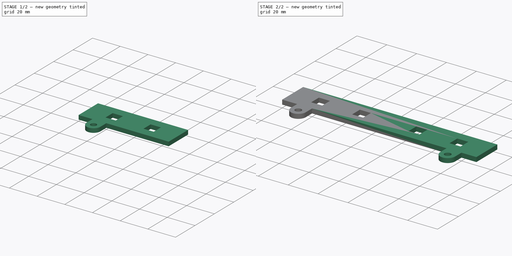
[diagram: build sequence overview — one tinted view per stage of 2, left to right]
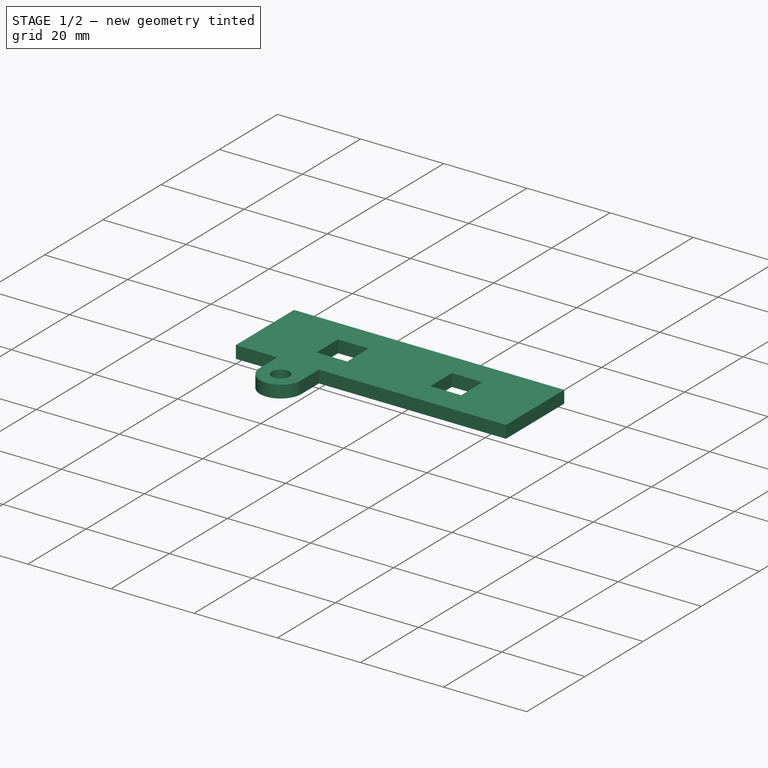
[diagram: stage 1 of 2 — iso view after this stage's code; geometry added in this stage tinted green]
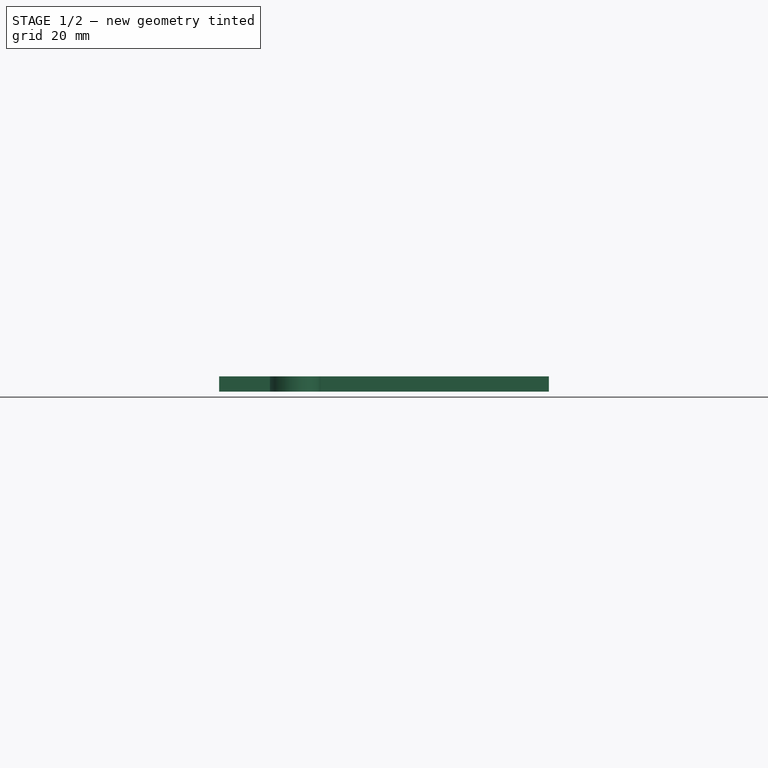
[diagram: stage 1 of 2 — front view after this stage's code; geometry added in this stage tinted green]
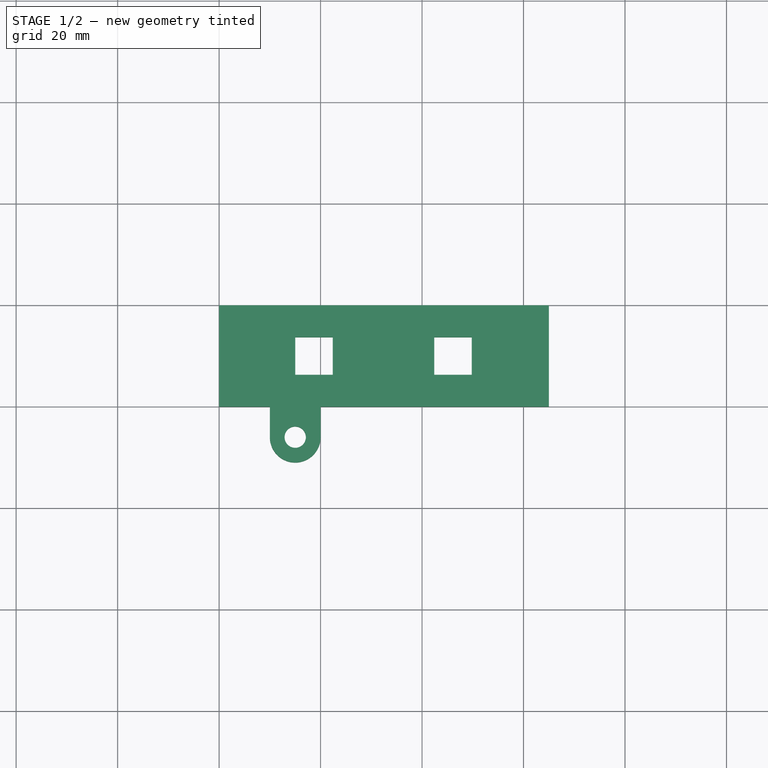
[diagram: stage 1 of 2 — top view after this stage's code; geometry added in this stage tinted green]
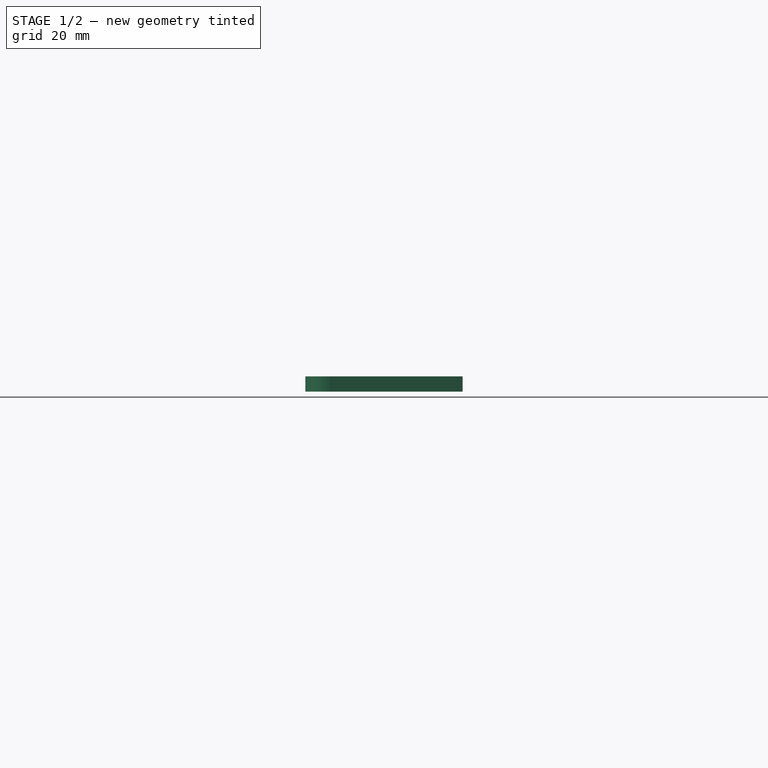
[diagram: stage 1 of 2 — right view after this stage's code; geometry added in this stage tinted green]
FCSTD DOCUMENT  (FreeCAD 0.16R6712 (Git))
Label: as
License: All rights reserved
LicenseURL: http://en.wikipedia.org/wiki/All_rights_reserved
objects: Sketcher::SketchObject×2, PartDesign::Pad×1, PartDesign::Pocket×1, Part::Mirroring×1, Part::MultiFuse×1
note: 8 computed .brp shape members not serialized (recipe doc carries the construction recipe); baked Part::Feature solids carry a one-line shape summary decoded from their .brp

FEATURE [Sketcher::SketchObject] Sketch
  sketch-geometry (11):
    g0: LineSegment StartX=0 StartY=20 StartZ=0 EndX=65 EndY=20 EndZ=0
    g1: LineSegment StartX=65 StartY=20 StartZ=0 EndX=65 EndY=0 EndZ=0
    g2: LineSegment StartX=0 StartY=0 StartZ=0 EndX=0 EndY=20 EndZ=0
    g3: LineSegment StartX=0 StartY=0 StartZ=0 EndX=10 EndY=0 EndZ=0
    g4: GeomPoint [constr] X=15 Y=-6 Z=0
    g5: ArcOfCircle CenterX=15 CenterY=-6 CenterZ=0 NormalX=0 NormalY=0 NormalZ=1 Radius=5 StartAngle=3.14159 EndAngle=6.28319
    g6: LineSegment StartX=10 StartY=0 StartZ=0 EndX=10 EndY=-6 EndZ=0
    g7: LineSegment [constr] StartX=10 StartY=-6 StartZ=0 EndX=20 EndY=-6 EndZ=0
    g8: Circle CenterX=15 CenterY=-6 CenterZ=0 NormalX=0 NormalY=0 NormalZ=1 Radius=2.1
    g9: LineSegment StartX=20 StartY=-6 StartZ=0 EndX=20 EndY=0 EndZ=0
    g10: LineSegment StartX=20 StartY=0 StartZ=0 EndX=65 EndY=0 EndZ=0
  constraints (30):
    c: Coincident(g0,g1)
    c: Coincident(g2,g0)
    c: Horizontal(g0)
    c: Vertical(g1)
    c: Vertical(g2)
    c: PointOnObject(g1,g-1)
    c: DistanceX(g0,g0) = 65
    c: DistanceY(g2,g2) = 20
    c: Coincident(g3,g-1)
    c: Horizontal(g3)
    c: DistanceX(g3,g3) = 10
    c: Coincident(g5,g4)
    c: Coincident(g6,g3)
    c: Vertical(g6)
    c: Coincident(g7,g6)
    c: Horizontal(g7)
    c: PointOnObject(g4,g7)
    c: Coincident(g5,g6)
    c: Coincident(g5,g7)
    c: DistanceY(g6,g6) = 6
    c: Coincident(g8,g4)
    c: Radius(g8) = 2.1
    c: Coincident(g9,g5)
    c: PointOnObject(g9,g-1)
    c: Vertical(g9)
    c: Equal(g6,g9)
    c: Distance(g3,g9) = 10
    c: Coincident(g10,g9)
    c: Coincident(g10,g1)
    c: Coincident(g-1,g2)
FEATURE [PartDesign::Pad] Pad
  Length = 3
  Length2 = 100
  Sketch = -> Sketch
  Type = 0
FEATURE [Sketcher::SketchObject] Sketch001
  Placement = pos=(0,0,0) rot=(1,0,0;3.14159rad)
  Support = -> Pad [Face10]
  sketch-geometry (12):
    g0: LineSegment [constr] StartX=0 StartY=-6.3 StartZ=0 EndX=67.2021 EndY=-6.3 EndZ=0
    g1: LineSegment [constr] StartX=0 StartY=0 StartZ=0 EndX=0 EndY=-6.3 EndZ=0
    g2: LineSegment StartX=15 StartY=-6.3 StartZ=0 EndX=22.4 EndY=-6.3 EndZ=0
    g3: LineSegment StartX=22.4 StartY=-6.3 StartZ=0 EndX=22.4 EndY=-13.7 EndZ=0
    g4: LineSegment StartX=22.4 StartY=-13.7 StartZ=0 EndX=15 EndY=-13.7 EndZ=0
    g5: LineSegment StartX=15 StartY=-13.7 StartZ=0 EndX=15 EndY=-6.3 EndZ=0
    g6: LineSegment [constr] StartX=0 StartY=-10.17 StartZ=0 EndX=15 EndY=-10.17 EndZ=0
    g7: LineSegment [constr] StartX=22.4 StartY=-10.1094 StartZ=0 EndX=42.4 EndY=-10.1094 EndZ=0
    g8: LineSegment StartX=42.4 StartY=-6.3 StartZ=0 EndX=49.8 EndY=-6.3 EndZ=0
    g9: LineSegment StartX=49.8 StartY=-6.3 StartZ=0 EndX=49.8 EndY=-13.7 EndZ=0
    g10: LineSegment StartX=49.8 StartY=-13.7 StartZ=0 EndX=42.4 EndY=-13.7 EndZ=0
    g11: LineSegment StartX=42.4 StartY=-13.7 StartZ=0 EndX=42.4 EndY=-6.3 EndZ=0
  constraints (35):
    c: PointOnObject(g0,g-2)
    c: Horizontal(g0)
    c: Coincident(g1,g-1)
    c: Coincident(g1,g0)
    c: DistanceY(g1,g1) = 6.3
    c: Coincident(g2,g3)
    c: Coincident(g3,g4)
    c: Coincident(g4,g5)
    c: Coincident(g5,g2)
    c: Horizontal(g2)
    c: Horizontal(g4)
    c: Vertical(g3)
    c: Vertical(g5)
    c: PointOnObject(g2,g0)
    c: PointOnObject(g6,g-2)
    c: PointOnObject(g6,g5)
    c: Horizontal(g6)
    c: DistanceX(g6,g6) = 15
    c: Equal(g4,g3)
    c: DistanceX(g4,g4) = 7.4
    c: Horizontal(g7)
    c: Coincident(g8,g9)
    c: Coincident(g9,g10)
    c: Coincident(g10,g11)
    c: Coincident(g11,g8)
    c: Horizontal(g8)
    c: Horizontal(g10)
    c: Vertical(g9)
    c: Vertical(g11)
    c: PointOnObject(g8,g0)
    c: PointOnObject(g7,g11)
    c: Equal(g9,g10)
    c: DistanceX(g10,g10) = 7.4
    c: DistanceX(g7,g7) = 20
    c: PointOnObject(g7,g3)
FEATURE [PartDesign::Pocket] Pocket
  Length = 5
  Sketch = -> Sketch001
  Type = 0
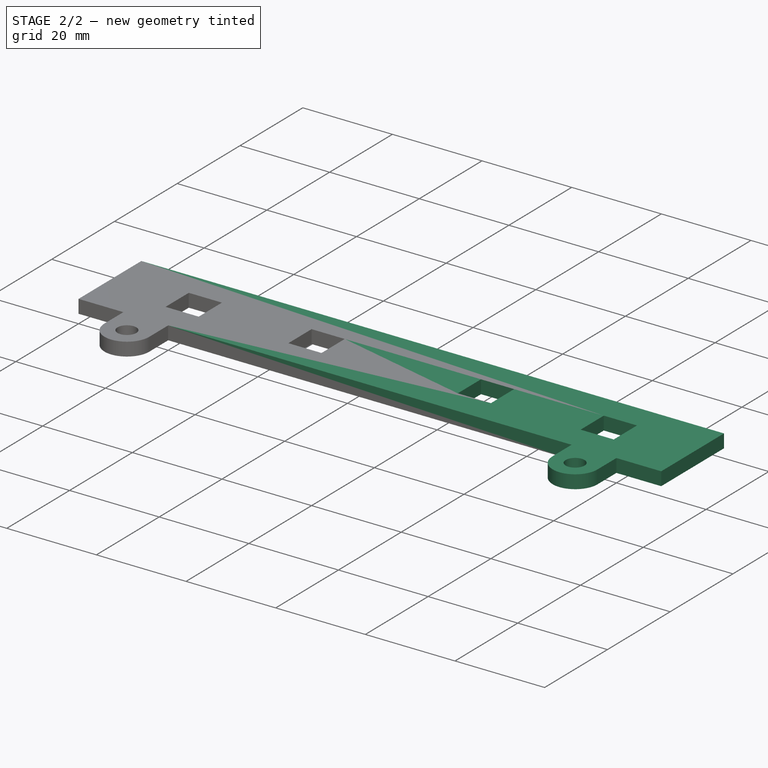
[diagram: stage 2 of 2 — iso view after this stage's code; geometry added in this stage tinted green]
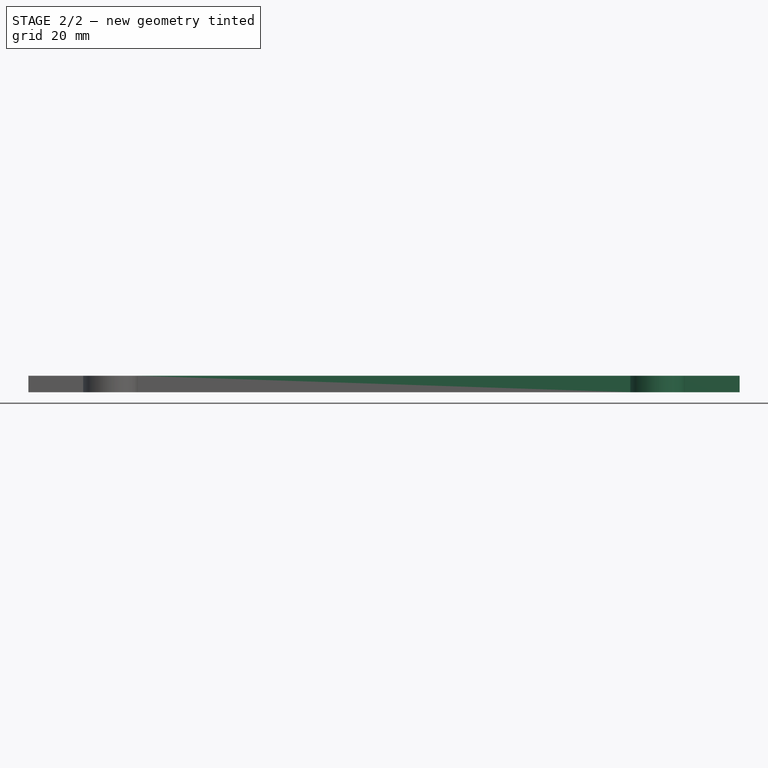
[diagram: stage 2 of 2 — front view after this stage's code; geometry added in this stage tinted green]
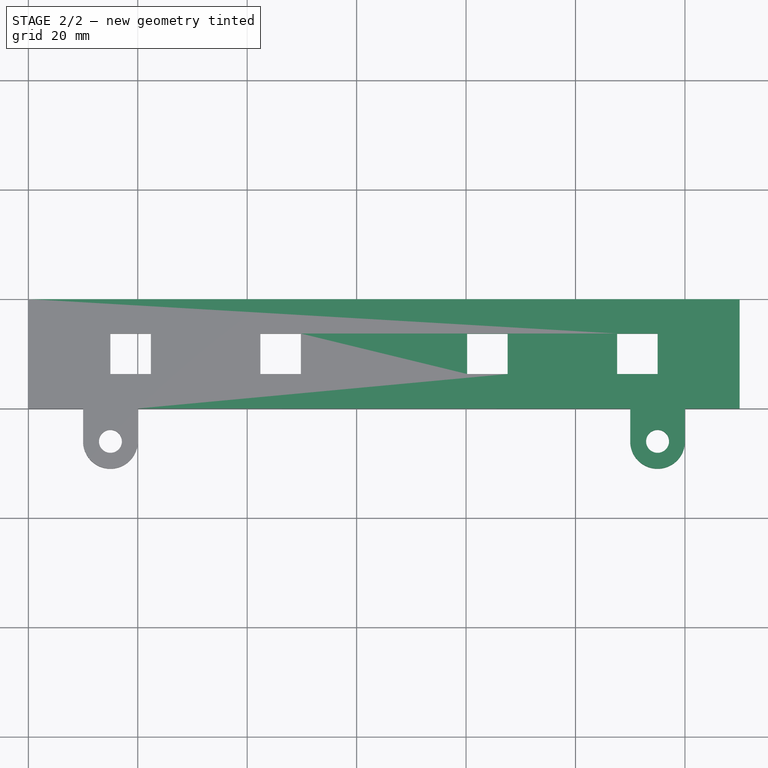
[diagram: stage 2 of 2 — top view after this stage's code; geometry added in this stage tinted green]
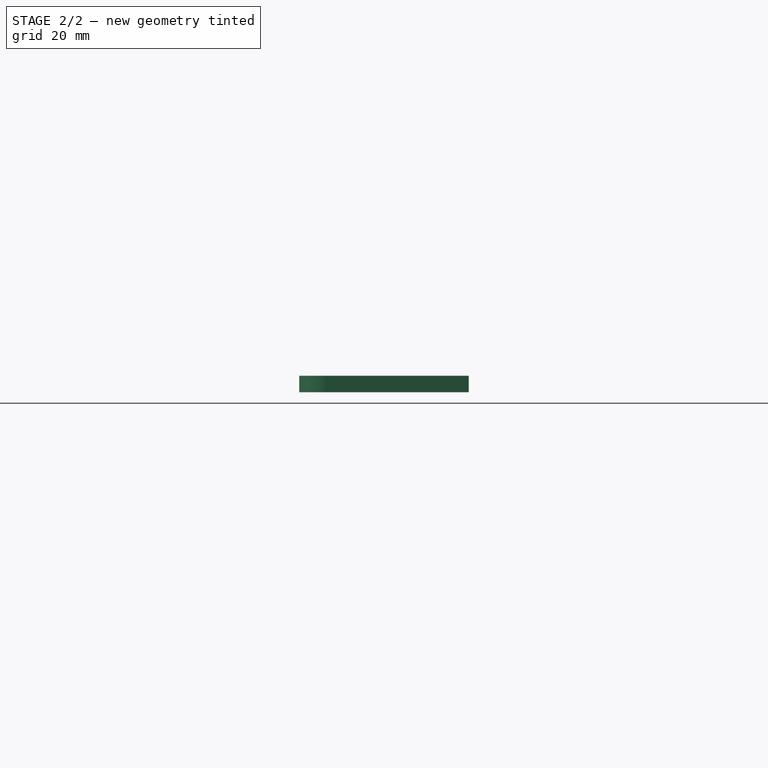
[diagram: stage 2 of 2 — right view after this stage's code; geometry added in this stage tinted green]
FEATURE [Part::Mirroring] Part__Mirroring  label="Pocket (Mirror #1)"
  Base = (0,0,0)
  Normal = (1,0,0)
  Placement = pos=(130,0,0) rot=(0,0,1;0rad)
  Source = -> Pocket
FEATURE [Part::MultiFuse] Fusion
  Shapes = -> [Pocket,Part__Mirroring]
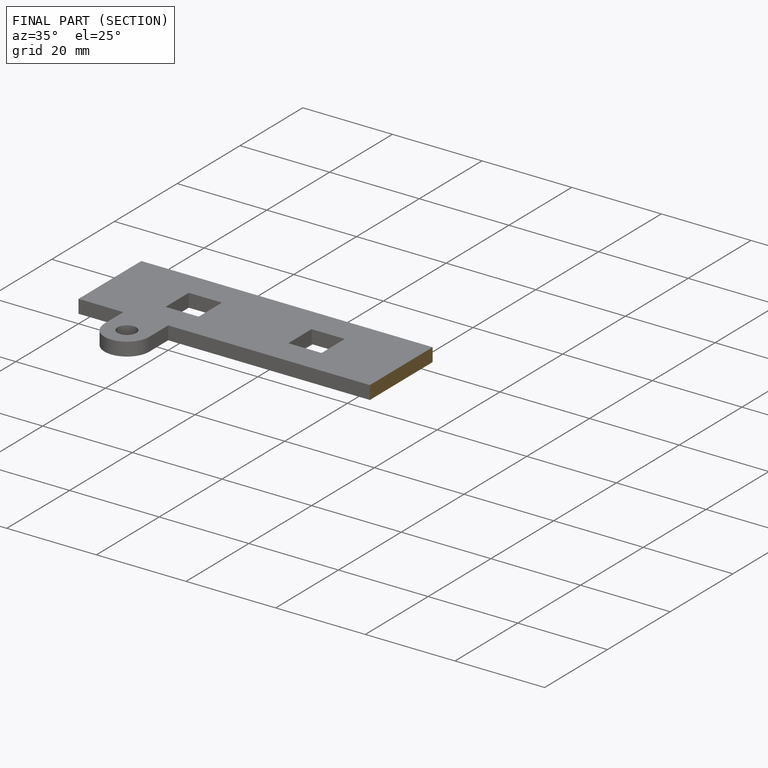
[diagram: finished part — half-section view (interior)]
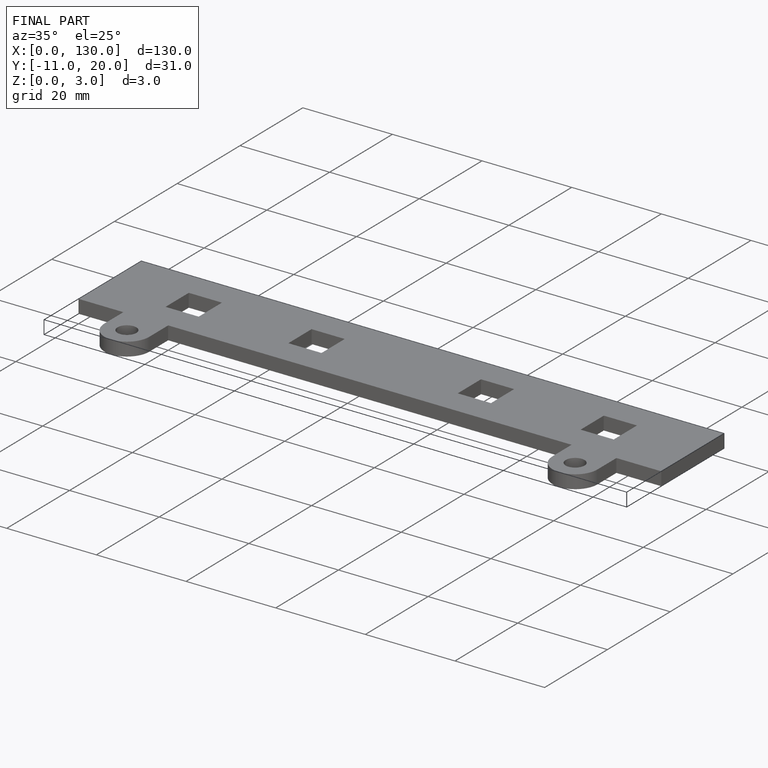
[diagram: finished part — iso view with bounding-box wireframe]
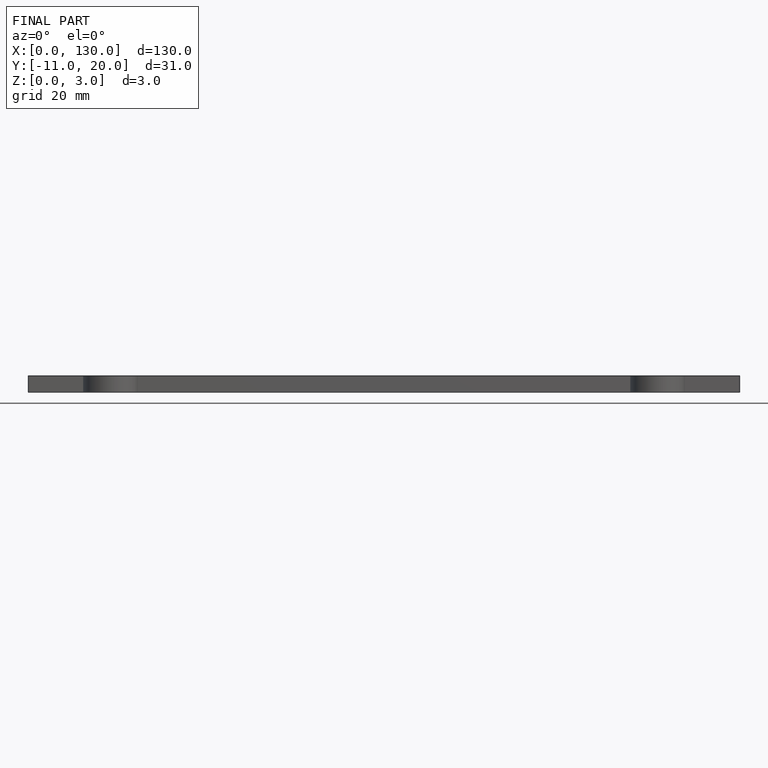
[diagram: finished part — front view with bounding-box wireframe]
